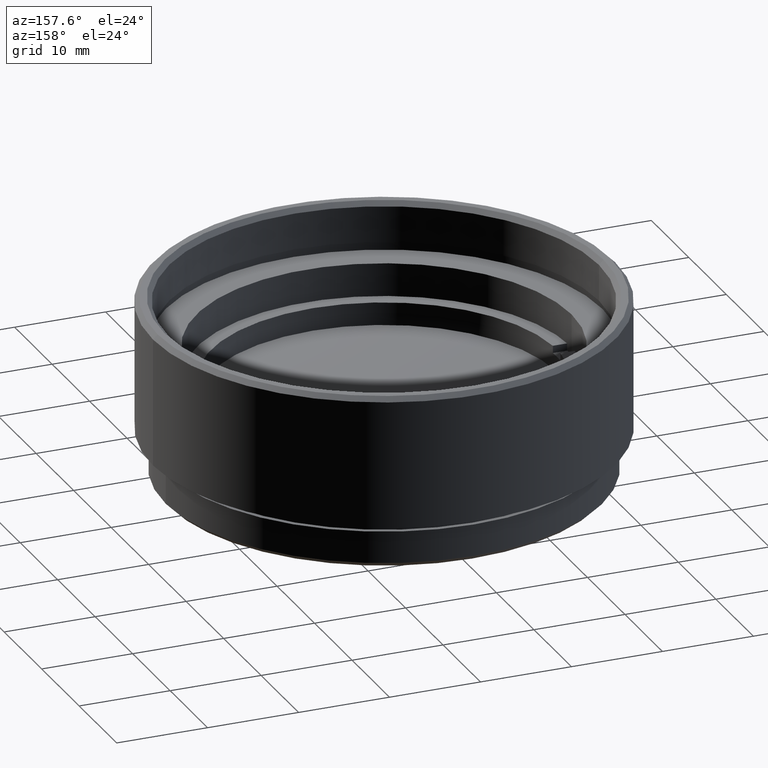
[diagram: clean part render]
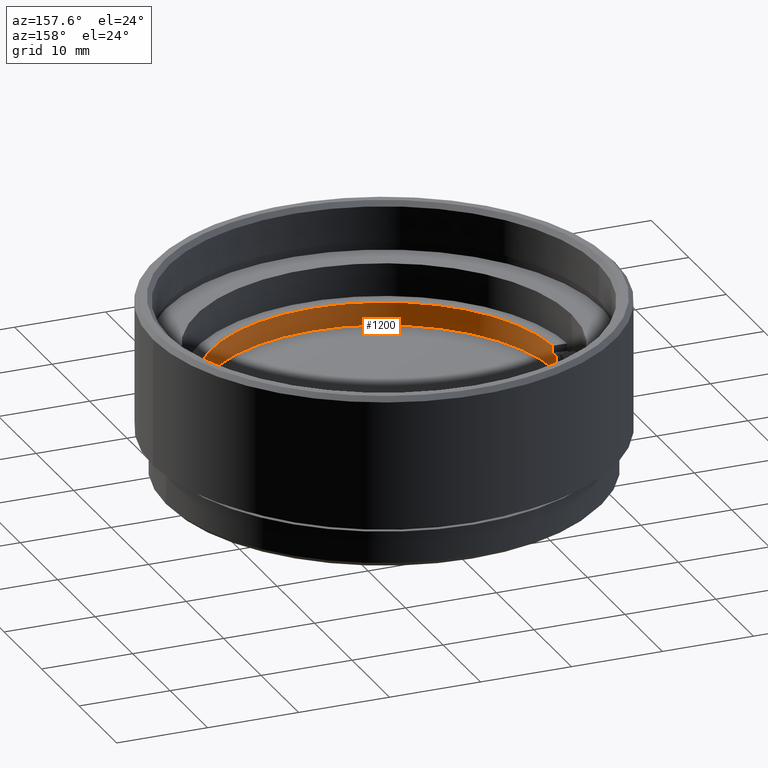
[diagram: same view with one face highlighted and labeled with its STEP entity id]
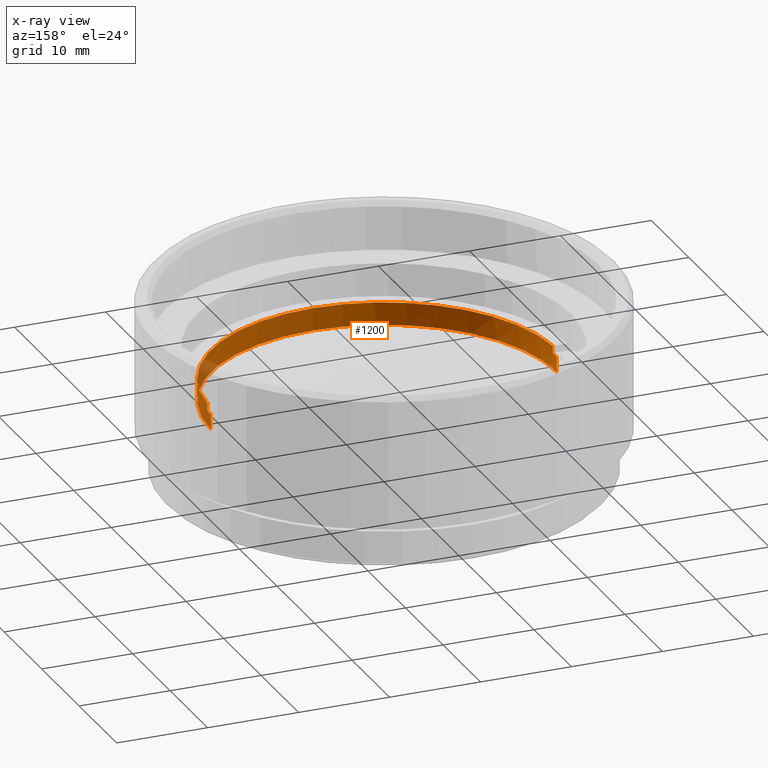
[diagram: x-ray of the same camera — body ghosted, the highlighted face saturated]
A machine part, auxiliary view. The second image highlights one B-rep face of the part: STEP entity #1200.
The next image is the same camera in x-ray: the body ghosted, the highlighted face saturated — about 7% of this face is hidden behind the body in this view.
In plain terms, the highlighted cylindrical surface (partial cylindrical patch) has radius 19 mm, axis along (-0, -0, -1).
Its self-contained STEP definition (entity closure, byte-faithful):
#10 = VECTOR ( 'NONE', #1383, 1000.000000000000000 ) ;
#16 = ORIENTED_EDGE ( 'NONE', *, *, #1443, .F. ) ;
#20 = CIRCLE ( 'NONE', #1882, 19.00000000000000000 ) ;
#124 = EDGE_LOOP ( 'NONE', ( #210, #215, #1836, #552, #1025, #16, #1018, #1385 ) ) ;
#143 = VECTOR ( 'NONE', #975, 1000.000000000000000 ) ;
#176 = CARTESIAN_POINT ( 'NONE',  ( 19.00000000000000000, 2.326828918379970970E-15, 0.000000000000000000 ) ) ;
#200 = VERTEX_POINT ( 'NONE', #706 ) ;
#210 = ORIENTED_EDGE ( 'NONE', *, *, #485, .T. ) ;
#211 = CARTESIAN_POINT ( 'NONE',  ( 18.97366596101027625, -1.000000000000000000, 2.500000000000000000 ) ) ;
#215 = ORIENTED_EDGE ( 'NONE', *, *, #765, .T. ) ;
#239 = VERTEX_POINT ( 'NONE', #385 ) ;
#308 = DIRECTION ( 'NONE',  ( -0.000000000000000000, 0.000000000000000000, 1.000000000000000000 ) ) ;
#357 = VERTEX_POINT ( 'NONE', #1490 ) ;
#385 = CARTESIAN_POINT ( 'NONE',  ( 18.97366596101027625, -1.000000000000000000, 2.500000000000000000 ) ) ;
#390 = CARTESIAN_POINT ( 'NONE',  ( 18.97366596101027625, -1.000000000000000000, 1.700000000000000178 ) ) ;
#447 = AXIS2_PLACEMENT_3D ( 'NONE', #480, #608, #1662 ) ;
#458 = DIRECTION ( 'NONE',  ( 1.000000000000000000, 0.000000000000000000, 0.000000000000000000 ) ) ;
#470 = DIRECTION ( 'NONE',  ( -1.000000000000000000, 0.000000000000000000, 0.000000000000000000 ) ) ;
#476 = CIRCLE ( 'NONE', #447, 19.00000000000000000 ) ;
#480 = CARTESIAN_POINT ( 'NONE',  ( 0.000000000000000000, 0.000000000000000000, 1.700000000000000178 ) ) ;
#485 = EDGE_CURVE ( 'NONE', #909, #200, #1405, .T. ) ;
#494 = CARTESIAN_POINT ( 'NONE',  ( -18.97366596101027625, -1.000000000000000000, 2.500000000000000000 ) ) ;
#552 = ORIENTED_EDGE ( 'NONE', *, *, #919, .F. ) ;
#567 = CARTESIAN_POINT ( 'NONE',  ( 19.00000000000000000, 2.326828918379970970E-15, 2.500000000000000000 ) ) ;
#585 = VERTEX_POINT ( 'NONE', #1397 ) ;
#590 = AXIS2_PLACEMENT_3D ( 'NONE', #1900, #709, #853 ) ;
#608 = DIRECTION ( 'NONE',  ( -0.000000000000000000, 0.000000000000000000, 1.000000000000000000 ) ) ;
#670 = VERTEX_POINT ( 'NONE', #1551 ) ;
#706 = CARTESIAN_POINT ( 'NONE',  ( 19.00000000000000000, 2.326828918379970970E-15, 1.700000000000000178 ) ) ;
#709 = DIRECTION ( 'NONE',  ( 0.000000000000000000, 0.000000000000000000, 1.000000000000000000 ) ) ;
#711 = DIRECTION ( 'NONE',  ( 1.000000000000000000, 0.000000000000000000, 0.000000000000000000 ) ) ;
#737 = CARTESIAN_POINT ( 'NONE',  ( 0.000000000000000000, 0.000000000000000000, 1.700000000000000178 ) ) ;
#765 = EDGE_CURVE ( 'NONE', #200, #1256, #1908, .T. ) ;
#776 = LINE ( 'NONE', #211, #10 ) ;
#803 = EDGE_CURVE ( 'NONE', #1361, #239, #1804, .T. ) ;
#853 = DIRECTION ( 'NONE',  ( 1.000000000000000000, 0.000000000000000000, 0.000000000000000000 ) ) ;
#896 = CYLINDRICAL_SURFACE ( 'NONE', #1292, 19.00000000000000000 ) ;
#908 = CARTESIAN_POINT ( 'NONE',  ( -18.97366596101027625, -1.000000000000000000, 2.500000000000000000 ) ) ;
#909 = VERTEX_POINT ( 'NONE', #390 ) ;
#919 = EDGE_CURVE ( 'NONE', #585, #357, #1554, .T. ) ;
#975 = DIRECTION ( 'NONE',  ( -0.000000000000000000, -0.000000000000000000, -1.000000000000000000 ) ) ;
#1014 = DIRECTION ( 'NONE',  ( -0.000000000000000000, -0.000000000000000000, -1.000000000000000000 ) ) ;
#1018 = ORIENTED_EDGE ( 'NONE', *, *, #803, .T. ) ;
#1025 = ORIENTED_EDGE ( 'NONE', *, *, #1202, .T. ) ;
#1137 = CARTESIAN_POINT ( 'NONE',  ( -19.00000000000000000, 0.000000000000000000, 2.500000000000000000 ) ) ;
#1164 = EDGE_CURVE ( 'NONE', #357, #1256, #20, .T. ) ;
#1183 = DIRECTION ( 'NONE',  ( 0.000000000000000000, 0.000000000000000000, 1.000000000000000000 ) ) ;
#1191 = FACE_OUTER_BOUND ( 'NONE', #124, .T. ) ;
#1200 = ADVANCED_FACE ( 'NONE', ( #1191 ), #896, .F. ) ;
#1202 = EDGE_CURVE ( 'NONE', #585, #670, #476, .T. ) ;
#1256 = VERTEX_POINT ( 'NONE', #176 ) ;
#1292 = AXIS2_PLACEMENT_3D ( 'NONE', #1794, #1371, #470 ) ;
#1361 = VERTEX_POINT ( 'NONE', #494 ) ;
#1371 = DIRECTION ( 'NONE',  ( -0.000000000000000000, -0.000000000000000000, -1.000000000000000000 ) ) ;
#1381 = EDGE_CURVE ( 'NONE', #909, #239, #776, .T. ) ;
#1383 = DIRECTION ( 'NONE',  ( 0.000000000000000000, 0.000000000000000000, 1.000000000000000000 ) ) ;
#1385 = ORIENTED_EDGE ( 'NONE', *, *, #1381, .F. ) ;
#1397 = CARTESIAN_POINT ( 'NONE',  ( -19.00000000000000000, 0.000000000000000000, 1.700000000000000178 ) ) ;
#1405 = CIRCLE ( 'NONE', #1709, 19.00000000000000000 ) ;
#1437 = VECTOR ( 'NONE', #1014, 1000.000000000000000 ) ;
#1443 = EDGE_CURVE ( 'NONE', #1361, #670, #1689, .T. ) ;
#1490 = CARTESIAN_POINT ( 'NONE',  ( -19.00000000000000000, 0.000000000000000000, 0.000000000000000000 ) ) ;
#1506 = DIRECTION ( 'NONE',  ( -0.000000000000000000, -0.000000000000000000, -1.000000000000000000 ) ) ;
#1551 = CARTESIAN_POINT ( 'NONE',  ( -18.97366596101027625, -1.000000000000000000, 1.700000000000000178 ) ) ;
#1554 = LINE ( 'NONE', #1137, #143 ) ;
#1617 = CARTESIAN_POINT ( 'NONE',  ( 0.000000000000000000, 0.000000000000000000, 0.000000000000000000 ) ) ;
#1662 = DIRECTION ( 'NONE',  ( 1.000000000000000000, 0.000000000000000000, 0.000000000000000000 ) ) ;
#1689 = LINE ( 'NONE', #908, #1747 ) ;
#1709 = AXIS2_PLACEMENT_3D ( 'NONE', #737, #308, #458 ) ;
#1747 = VECTOR ( 'NONE', #1506, 1000.000000000000000 ) ;
#1794 = CARTESIAN_POINT ( 'NONE',  ( 0.000000000000000000, 0.000000000000000000, 2.500000000000000000 ) ) ;
#1804 = CIRCLE ( 'NONE', #590, 19.00000000000000000 ) ;
#1836 = ORIENTED_EDGE ( 'NONE', *, *, #1164, .F. ) ;
#1882 = AXIS2_PLACEMENT_3D ( 'NONE', #1617, #1183, #711 ) ;
#1900 = CARTESIAN_POINT ( 'NONE',  ( 0.000000000000000000, 0.000000000000000000, 2.500000000000000000 ) ) ;
#1908 = LINE ( 'NONE', #567, #1437 ) ;